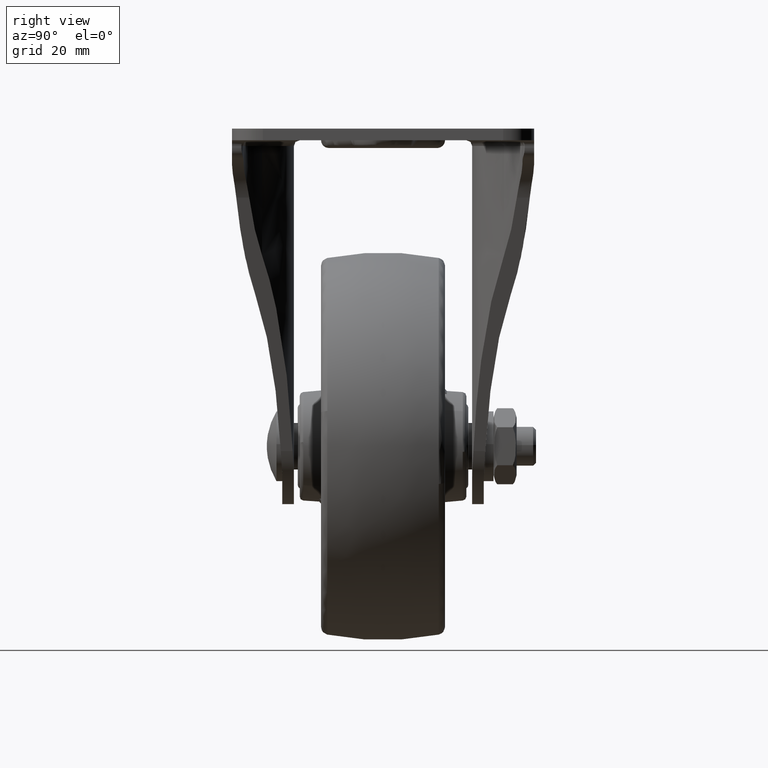
[diagram: clean part render]
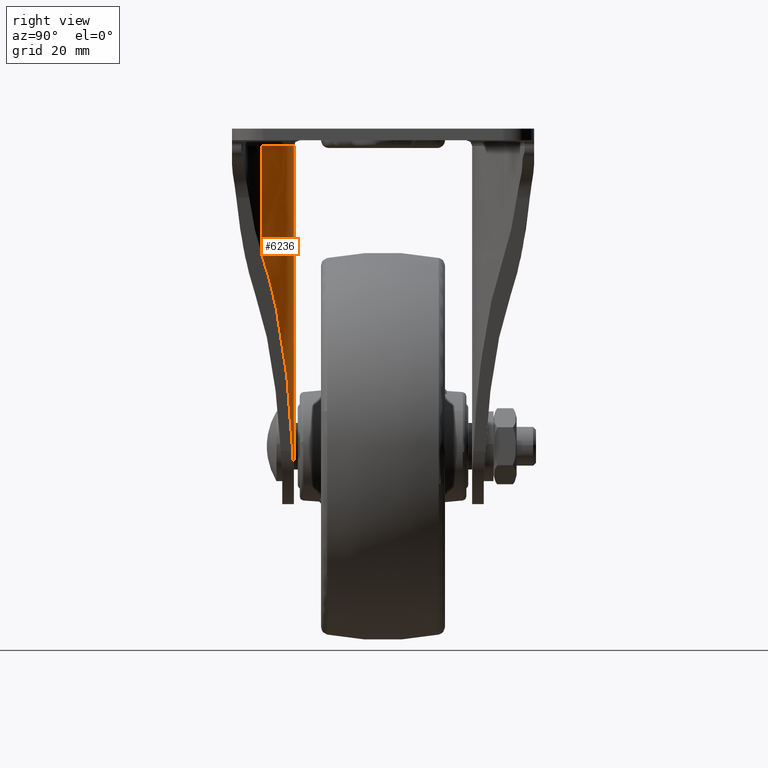
[diagram: same view with one face highlighted and labeled with its STEP entity id]
A machine part, right view. The second image highlights one B-rep face of the part: STEP entity #6236.
In plain terms, the highlighted face is a freeform B-spline surface patch.
Its self-contained STEP definition (entity closure, byte-faithful):
#6121=CARTESIAN_POINT('',(13.999997921514900,-23.0,77.500007999999895));
#6122=VERTEX_POINT('',#6121);
#6128=CARTESIAN_POINT('',(13.999997921514900,-23.0,-8.313712580744150));
#6129=VERTEX_POINT('',#6128);
#6130=CARTESIAN_POINT('',(13.999997921514900,-23.0,-8.313712580744150));
#6131=CARTESIAN_POINT('',(13.999997921514900,-23.0,77.500007999999895));
#6132=QUASI_UNIFORM_CURVE('',1,(#6130,#6131),.UNSPECIFIED.,.F.,.U.);
#6133=EDGE_CURVE('',#6129,#6122,#6132,.T.);
#6161=CARTESIAN_POINT('',(13.330908082249691,-23.011784812531729,-10.459055595262750));
#6162=CARTESIAN_POINT('',(13.330908082249691,-23.011784812531729,79.698984589881476));
#6163=CARTESIAN_POINT('',(24.329901485589609,-22.624210861167374,-10.459055595262754));
#6164=CARTESIAN_POINT('',(24.329901485589609,-22.624210861167374,79.698984589881476));
#6165=CARTESIAN_POINT('',(30.138402553478993,-31.972439827063496,-10.459055595262754));
#6166=CARTESIAN_POINT('',(30.138402553478993,-31.972439827063496,79.698984589881476));
#6174=(BOUNDED_SURFACE()B_SPLINE_SURFACE(1,2,((#6161,#6163,#6165),(#6162,#6164,#6166)),.UNSPECIFIED.,.F.,.F.,.U.)B_SPLINE_SURFACE_WITH_KNOTS((2,2),(3,3),(0.0,90.158040185144230),(0.0,20.422142070384961),.UNSPECIFIED.)GEOMETRIC_REPRESENTATION_ITEM()RATIONAL_B_SPLINE_SURFACE(((1.0,0.861592667480091,0.991423487560298),(1.0,0.861592667480091,0.991423487560298)))REPRESENTATION_ITEM('')SURFACE());
#6175=ORIENTED_EDGE('',*,*,#6133,.T.);
#6176=CARTESIAN_POINT('',(29.654995435009798,-31.233333016674951,77.500007999999895));
#6177=VERTEX_POINT('',#6176);
#6178=CARTESIAN_POINT('',(13.999997921514900,-23.000000000000121,77.500007999999895));
#6179=CARTESIAN_POINT('',(23.992549419572370,-22.999998906875412,77.500007999999895));
#6180=CARTESIAN_POINT('',(29.654995435009809,-31.233333016674941,77.500007999999895));
#6188=(BOUNDED_CURVE()B_SPLINE_CURVE(2,(#6178,#6179,#6180),.UNSPECIFIED.,.F.,.U.)CURVE()GEOMETRIC_REPRESENTATION_ITEM()QUASI_UNIFORM_CURVE()RATIONAL_B_SPLINE_CURVE((1.0,0.885061182404375,1.0))REPRESENTATION_ITEM(''));
#6189=EDGE_CURVE('',#6122,#6177,#6188,.T.);
#6190=ORIENTED_EDGE('',*,*,#6189,.T.);
#6191=CARTESIAN_POINT('',(29.654995435009798,-31.233333016674951,49.291798104478403));
#6192=VERTEX_POINT('',#6191);
#6193=CARTESIAN_POINT('',(29.654995435009798,-31.233333016674951,49.291798104478403));
#6194=CARTESIAN_POINT('',(29.654995435009798,-31.233333016674951,77.500007999999895));
#6195=QUASI_UNIFORM_CURVE('',1,(#6193,#6194),.UNSPECIFIED.,.F.,.U.);
#6196=EDGE_CURVE('',#6192,#6177,#6195,.T.);
#6197=ORIENTED_EDGE('',*,*,#6196,.F.);
#6198=CARTESIAN_POINT('',(17.500309285302301,-23.325208571252301,-1.211794659477174));
#6199=VERTEX_POINT('',#6198);
#6200=CARTESIAN_POINT('',(17.500309285302301,-23.325208571252301,-1.211794659477174));
#6201=CARTESIAN_POINT('',(25.210057408194036,-24.770285109047297,30.822761783640882));
#6202=CARTESIAN_POINT('',(29.654995435009820,-31.233333016674951,49.291798104478083));
#6210=(BOUNDED_CURVE()B_SPLINE_CURVE(2,(#6200,#6201,#6202),.UNSPECIFIED.,.F.,.U.)CURVE()GEOMETRIC_REPRESENTATION_ITEM()QUASI_UNIFORM_CURVE()RATIONAL_B_SPLINE_CURVE((1.0,0.924326951498865,1.0))REPRESENTATION_ITEM(''));
#6211=EDGE_CURVE('',#6199,#6192,#6210,.T.);
#6212=ORIENTED_EDGE('',*,*,#6211,.F.);
#6213=CARTESIAN_POINT('',(13.999997921514900,-23.0,-8.313712580744150));
#6214=CARTESIAN_POINT('',(14.417406396298800,-22.999999954338151,-7.797196240662475));
#6215=CARTESIAN_POINT('',(14.806948144901920,-23.013701050764929,-7.256873843568436));
#6216=CARTESIAN_POINT('',(15.258022027944580,-23.041478165588732,-6.550961797767535));
#6217=CARTESIAN_POINT('',(15.346190564912050,-23.047554259253729,-6.408631581025024));
#6218=CARTESIAN_POINT('',(15.518078757432020,-23.060547381742431,-6.122343176804780));
#6219=CARTESIAN_POINT('',(15.601864087714169,-23.067468445310251,-5.978282533637608));
#6220=CARTESIAN_POINT('',(15.846816776108749,-23.089258441435760,-5.543369884887985));
#6221=CARTESIAN_POINT('',(16.001586238917390,-23.105150110947751,-5.249789295326478));
#6222=CARTESIAN_POINT('',(16.440678761685291,-23.155109806931112,-4.358200353620606));
#6223=CARTESIAN_POINT('',(16.699867488949049,-23.191414935303140,-3.749377759122064));
#6224=CARTESIAN_POINT('',(17.038349566684150,-23.244161680716960,-2.814171641491652));
#6225=CARTESIAN_POINT('',(17.142773004296881,-23.261471541420271,-2.498766029456532));
#6226=CARTESIAN_POINT('',(17.286614856091770,-23.286354429852491,-2.020034835031447));
#6227=CARTESIAN_POINT('',(17.332428585234961,-23.294469060548810,-1.859520093810939));
#6228=CARTESIAN_POINT('',(17.419741040103741,-23.310234372226940,-1.536588848433106));
#6229=CARTESIAN_POINT('',(17.461230089126261,-23.317883762632182,-1.374171522598684));
#6230=CARTESIAN_POINT('',(17.500309285302269,-23.325208571252350,-1.211794659477171));
#6231=B_SPLINE_CURVE_WITH_KNOTS('',3,(#6213,#6214,#6215,#6216,#6217,#6218,#6219,#6220,#6221,#6222,#6223,#6224,#6225,#6226,#6227,#6228,#6229,#6230),.UNSPECIFIED.,.F.,.U.,(4,2,2,2,2,2,2,2,4),(0.0,0.250000000000000,0.312500000000000,0.375000000000000,0.499999999999999,0.749999999999999,0.875000000000000,0.937500000000000,1.0),.UNSPECIFIED.);
#6232=EDGE_CURVE('',#6129,#6199,#6231,.T.);
#6233=ORIENTED_EDGE('',*,*,#6232,.F.);
#6234=EDGE_LOOP('',(#6175,#6190,#6197,#6212,#6233));
#6235=FACE_OUTER_BOUND('',#6234,.T.);
#6236=ADVANCED_FACE('',(#6235),#6174,.T.);